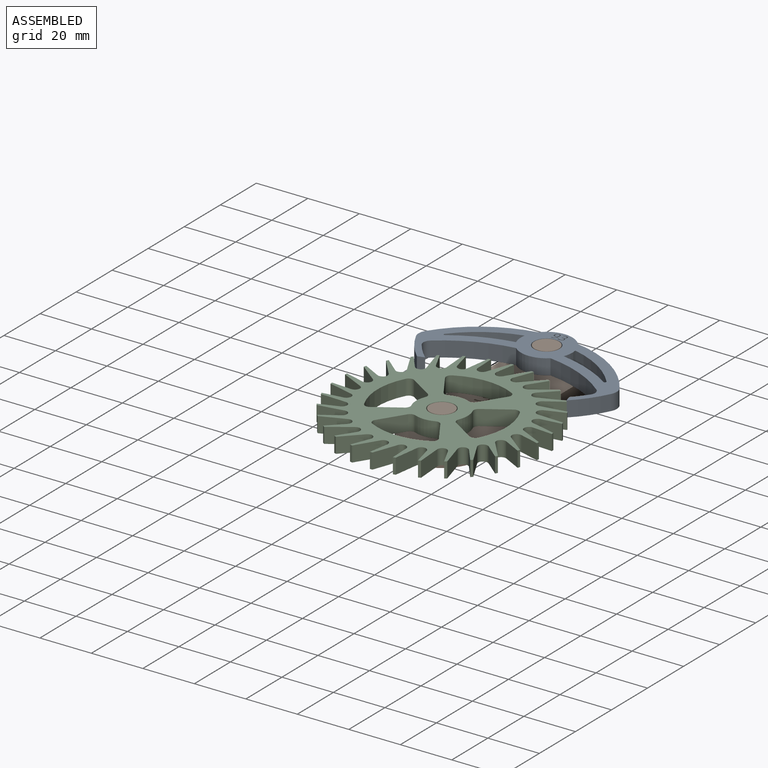
[diagram: assembled view]
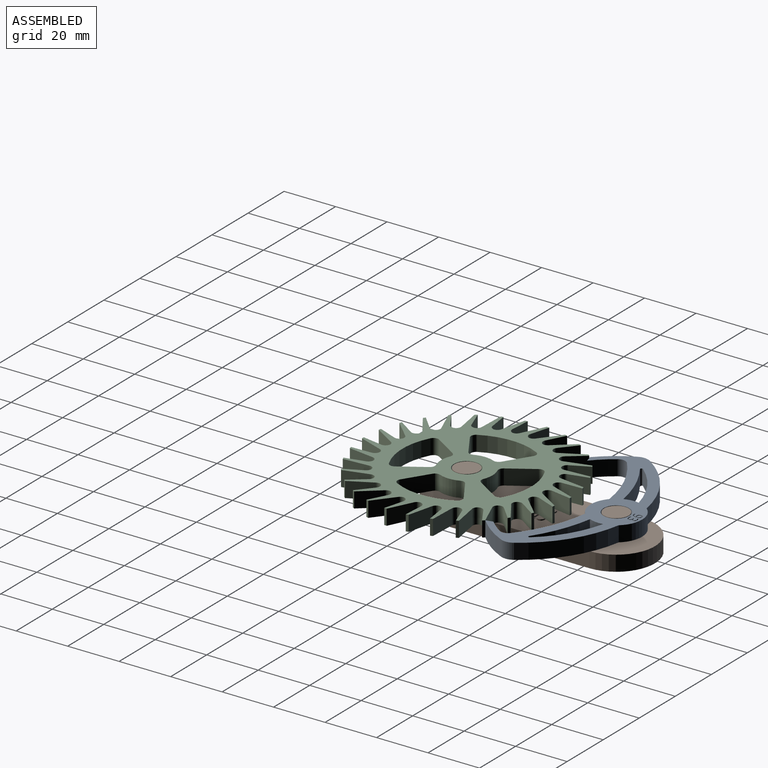
[diagram: assembled view, second angle]
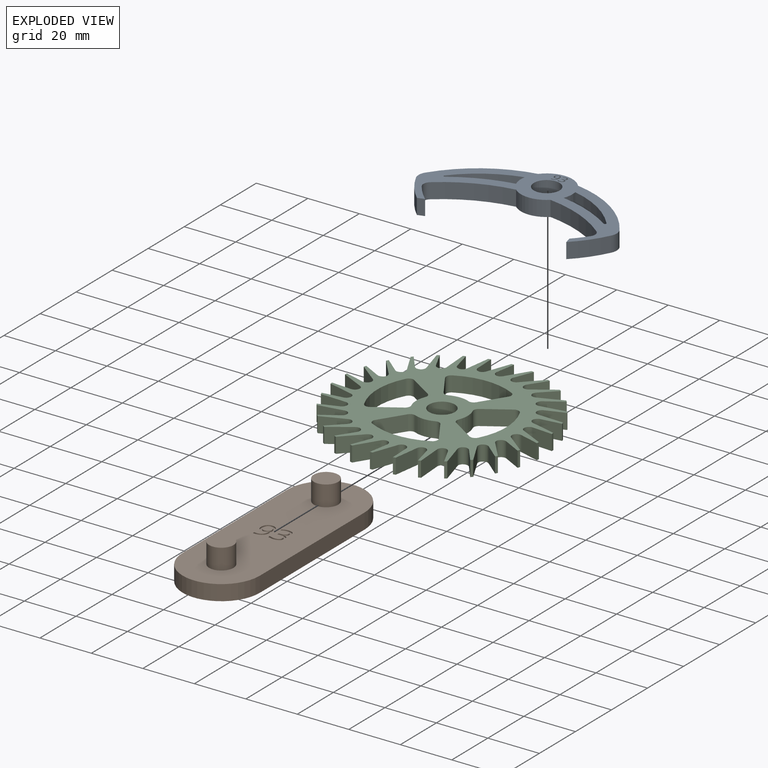
[diagram: exploded view]
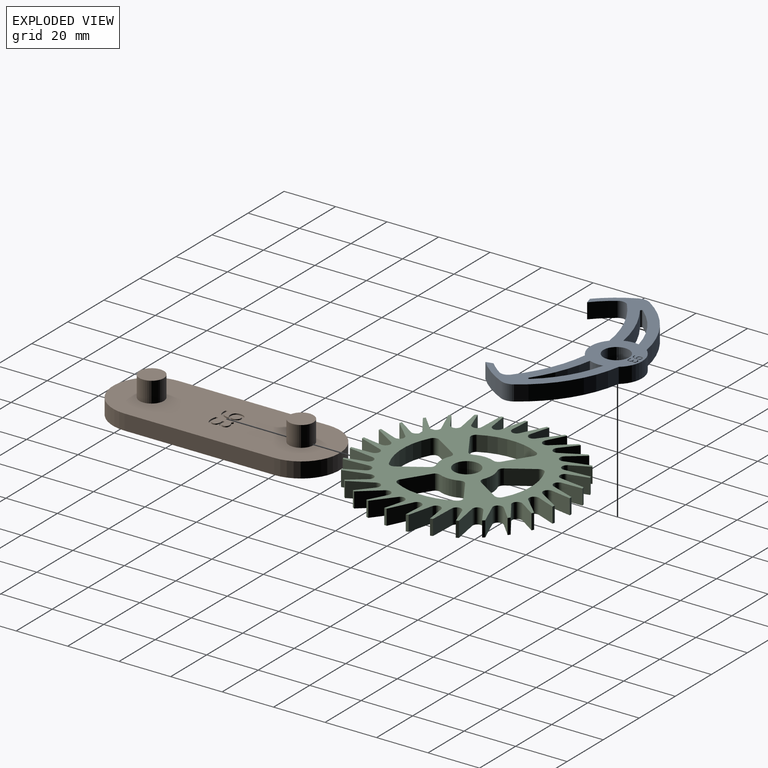
[diagram: exploded view, second angle]
ASSEMBLY  parts=3 mates=2
PART A: 84 faces, bbox 77x40.6x6 mm
  f0: plane 76.96x40.58mm, normal (0,0,1), area 835.8mm2, adj f2,f3,f4,f5,f6,f7,f8,f9
  f1: plane 76.96x40.58mm, normal (0,0,-1), area 843.3mm2, adj f2,f3,f4,f5,f6,f7,f8,f9
  f2: cylinder r=45mm len=29.92mm, axis (0,0,-1), area 221.1mm2, adj f0,f1,f3,f18
  f3: cylinder r=10mm len=15.48mm, axis (0,0,-1), area 106.3mm2, adj f0,f1,f2,f4
  f4: cylinder r=45mm len=29.92mm, axis (0,0,-1), area 221.1mm2, adj f0,f1,f3,f17
  f5: cylinder r=42.15mm len=12.3mm, axis (0,0,-1), area 91.8mm2, adj f0,f1,f6,f17
  f6: plane 6x2.66mm, normal (0.28,-0.96,0), area 16.7mm2, adj f0,f1,f5,f7
  f7: cylinder r=39.77mm len=7.32mm, axis (0,0,-1), area 58.7mm2, adj f0,f1,f6,f15
  f8: cylinder r=51.11mm len=25.55mm, axis (0,0,-1), area 169.1mm2, adj f0,f1,f9,f15
  f9: cylinder r=10mm len=13.37mm, axis (0,0,-1), area 87.8mm2, adj f0,f1,f8,f10
  f10: cylinder r=51.11mm len=25.55mm, axis (0,0,-1), area 169.1mm2, adj f0,f1,f9,f16
  f11: cylinder r=39.77mm len=6mm, axis (0,0,-1), area 42.1mm2, adj f0,f1,f12,f16
  f12: plane 6x2.7mm, normal (-0.97,-0.23,0), area 16.7mm2, adj f0,f1,f11,f14
  f13: cylinder r=5mm len=10mm, axis (0,0,-1), area 188.5mm2, adj f0,f1
  f14: cylinder r=42.15mm len=12.3mm, axis (0,0,-1), area 91.8mm2, adj f0,f1,f12,f18
  f15: cylinder r=3mm len=6mm, axis (0,0,1), area 26.8mm2, adj f0,f1,f7,f8
  f16: cylinder r=3mm len=6mm, axis (0,0,1), area 26.8mm2, adj f0,f1,f10,f11
  f17: cylinder r=5mm len=6mm, axis (0,0,-1), area 30.8mm2, adj f0,f1,f4,f5
  f18: cylinder r=5mm len=6mm, axis (0,0,-1), area 30.8mm2, adj f0,f1,f2,f14
  f19: cylinder r=55.11mm len=21.47mm, axis (0,0,1), area 139.8mm2, adj f0,f1,f20,f26
  f20: cylinder r=10mm len=6mm, axis (0,0,1), area 34.2mm2, adj f0,f1,f19,f21
  f21: cylinder r=41mm len=21.56mm, axis (0,0,1), area 154.9mm2, adj f0,f1,f20,f26
  f22: cylinder r=55.11mm len=21.47mm, axis (0,0,1), area 139.8mm2, adj f0,f1,f24,f25
  f23: cylinder r=41mm len=21.56mm, axis (0,0,1), area 154.9mm2, adj f0,f1,f24,f25
  f24: cylinder r=10mm len=6mm, axis (0,0,1), area 34.2mm2, adj f0,f1,f22,f23
  f25: cylinder r=0.5mm len=6mm, axis (0,0,1), area 8.6mm2, adj f0,f1,f22,f23
  f26: cylinder r=0.5mm len=6mm, axis (0,0,1), area 8.6mm2, adj f0,f1,f19,f21
  f27: extruded ~0.52x0.5mm, area 0.3mm2, adj f28,f52,f53,f83
  f28: extruded ~0.5x0.39mm, area 0.2mm2, adj f27,f29,f53,f83
  f29: extruded ~0.5x0.33mm, area 0.2mm2, adj f28,f30,f53,f83
  f30: extruded ~0.5x0.45mm, area 0.2mm2, adj f29,f31,f53,f83
  f31: extruded ~0.5x0.31mm, area 0.2mm2, adj f30,f32,f53,f83
  f32: extruded ~0.5x0.28mm, area 0.2mm2, adj f31,f33,f53,f83
  f33: extruded ~0.5x0.39mm, area 0.2mm2, adj f32,f34,f53,f83
  f34: extruded ~0.51x0.5mm, area 0.3mm2, adj f33,f35,f53,f83
  f35: extruded ~0.53x0.5mm, area 0.3mm2, adj f34,f52,f53,f83
  f36: extruded ~2x1.55mm, area 1.4mm2, adj f0,f37,f51,f53
  f37: extruded ~0.81x0.5mm, area 0.4mm2, adj f0,f36,f38,f53
  f38: extruded ~0.52x0.5mm, area 0.3mm2, adj f0,f37,f39,f53
  f39: extruded ~0.61x0.5mm, area 0.3mm2, adj f0,f38,f40,f53
  f40: extruded ~0.78x0.5mm, area 0.4mm2, adj f0,f39,f41,f53
  f41: extruded ~0.84x0.5mm, area 0.5mm2, adj f0,f40,f42,f53
  f42: extruded ~0.76x0.5mm, area 0.4mm2, adj f0,f41,f43,f53
  f43: extruded ~0.72x0.5mm, area 0.4mm2, adj f0,f42,f44,f53
  f44: extruded ~0.5x0.48mm, area 0.2mm2, adj f0,f43,f45,f53
  f45: extruded ~0.5x0.34mm, area 0.2mm2, adj f0,f44,f46,f53
  f46: plane 0.5x0.03mm, normal (0,1,0), area 0mm2, adj f0,f45,f47,f53
  f47: extruded ~1.06x0.5mm, area 0.6mm2, adj f0,f46,f48,f53
  f48: extruded ~0.85x0.5mm, area 0.5mm2, adj f0,f47,f49,f53
  f49: extruded ~0.5x0.42mm, area 0.2mm2, adj f0,f48,f50,f53
  f50: plane 0.5x0.33mm, normal (1,0,0), area 0.2mm2, adj f0,f49,f51,f53
  f51: extruded ~0.5x0.43mm, area 0.2mm2, adj f0,f36,f50,f53
  f52: extruded ~0.6x0.5mm, area 0.3mm2, adj f27,f35,f53,f83
  f53: plane 3.51x2.23mm, normal (0,0,1), area 3mm2, adj f27,f28,f29,f30,f31,f32,f33,f34
  f54: extruded ~0.54x0.5mm, area 0.3mm2, adj f0,f55,f81,f82
  f55: extruded ~0.62x0.5mm, area 0.4mm2, adj f0,f54,f56,f82
  f56: extruded ~0.77x0.5mm, area 0.4mm2, adj f0,f55,f57,f82
  f57: extruded ~0.58x0.5mm, area 0.3mm2, adj f0,f56,f58,f82
  f58: extruded ~0.5x0.48mm, area 0.3mm2, adj f0,f57,f59,f82
  f59: plane 0.5x0.26mm, normal (0.8,0.6,0), area 0.2mm2, adj f0,f58,f60,f82
  f60: extruded ~0.5x0.45mm, area 0.3mm2, adj f0,f59,f61,f82
  f61: extruded ~0.5x0.42mm, area 0.2mm2, adj f0,f60,f62,f82
  f62: extruded ~0.5x0.47mm, area 0.2mm2, adj f0,f61,f63,f82
  f63: extruded ~0.5x0.39mm, area 0.2mm2, adj f0,f62,f64,f82
  f64: extruded ~0.5x0.49mm, area 0.3mm2, adj f0,f63,f65,f82
  f65: extruded ~0.63x0.5mm, area 0.3mm2, adj f0,f64,f66,f82
  f66: plane 0.5x0.34mm, normal (0,-1,0), area 0.2mm2, adj f0,f65,f67,f82
  f67: plane 0.5x0.33mm, normal (1,0,0), area 0.2mm2, adj f0,f66,f68,f82
  f68: plane 0.5x0.34mm, normal (0,1,0), area 0.2mm2, adj f0,f67,f69,f82
  f69: extruded ~0.98x0.62mm, area 0.7mm2, adj f0,f68,f70,f82
  f70: extruded ~0.89x0.69mm, area 0.6mm2, adj f0,f69,f71,f82
  f71: extruded ~0.5x0.48mm, area 0.2mm2, adj f0,f70,f72,f82
  f72: extruded ~0.5x0.47mm, area 0.3mm2, adj f0,f71,f73,f82
  f73: plane 0.5x0.37mm, normal (1,0,0), area 0.2mm2, adj f0,f72,f74,f82
  f74: extruded ~0.5x0.44mm, area 0.2mm2, adj f0,f73,f75,f82
  f75: extruded ~0.5x0.5mm, area 0.2mm2, adj f0,f74,f76,f82
  f76: extruded ~0.96x0.5mm, area 0.5mm2, adj f0,f75,f77,f82
  f77: extruded ~0.75x0.5mm, area 0.4mm2, adj f0,f76,f78,f82
  f78: extruded ~0.55x0.5mm, area 0.3mm2, adj f0,f77,f79,f82
  f79: extruded ~0.61x0.5mm, area 0.3mm2, adj f0,f78,f80,f82
  f80: plane 0.5x0.02mm, normal (-1,0,0), area 0mm2, adj f0,f79,f81,f82
  f81: extruded ~0.52x0.5mm, area 0.3mm2, adj f0,f54,f80,f82
  f82: plane 3.51x2.24mm, normal (0,0,1), area 2.7mm2, adj f54,f55,f56,f57,f58,f59,f60,f61
  f83: plane 1.53x1.46mm, normal (0,0,1), area 1.8mm2, adj f27,f28,f29,f30,f31,f32,f33,f34
PART B: 67 faces, bbox 30x88.1x14 mm
  f0: plane 88.11x30mm, normal (0,0,1), area 2267.8mm2, adj f1,f2,f3,f4,f6,f8,f19,f20
  f1: cylinder r=15mm len=30mm, axis (0,0,-1), area 282.7mm2, adj f0,f2,f4,f5
  f2: plane 58.11x6mm, normal (-1,0,0), area 348.7mm2, adj f0,f1,f3,f5
  f3: cylinder r=15mm len=30mm, axis (0,0,-1), area 282.7mm2, adj f0,f2,f4,f5
  f4: plane 58.11x6mm, normal (1,0,0), area 348.7mm2, adj f0,f1,f3,f5
  f5: plane 88.11x30mm, normal (0,0,-1), area 2450.2mm2, adj f1,f2,f3,f4
  f6: cylinder r=4.75mm len=9.5mm, axis (0,0,-1), area 238.8mm2, adj f0,f7
  f7: plane 9.5x9.5mm, normal (0,0,1), area 70.9mm2, adj f6
  f8: cylinder r=4.75mm len=9.5mm, axis (0,0,-1), area 238.8mm2, adj f0,f9
  f9: plane 9.5x9.5mm, normal (0,0,1), area 70.9mm2, adj f8
  f10: extruded ~1.2x0.5mm, area 0.7mm2, adj f11,f35,f36,f66
  f11: extruded ~0.91x0.5mm, area 0.5mm2, adj f10,f12,f36,f66
  f12: extruded ~0.76x0.62mm, area 0.5mm2, adj f11,f13,f36,f66
  f13: extruded ~1.05x0.5mm, area 0.5mm2, adj f12,f14,f36,f66
  f14: extruded ~0.73x0.5mm, area 0.4mm2, adj f13,f15,f36,f66
  f15: extruded ~0.65x0.55mm, area 0.4mm2, adj f14,f16,f36,f66
  f16: extruded ~0.91x0.5mm, area 0.5mm2, adj f15,f17,f36,f66
  f17: extruded ~1.19x0.5mm, area 0.7mm2, adj f16,f18,f36,f66
  f18: extruded ~1.23x0.5mm, area 0.7mm2, adj f17,f35,f36,f66
  f19: extruded ~4.66x3.6mm, area 3.4mm2, adj f0,f20,f34,f36
  f20: extruded ~1.87x0.5mm, area 1mm2, adj f0,f19,f21,f36
  f21: extruded ~1.21x0.93mm, area 0.8mm2, adj f0,f20,f22,f36
  f22: extruded ~1.41x0.5mm, area 0.7mm2, adj f0,f21,f23,f36
  f23: extruded ~1.82x0.72mm, area 1mm2, adj f0,f22,f24,f36
  f24: extruded ~1.95x0.69mm, area 1.1mm2, adj f0,f23,f25,f36
  f25: extruded ~1.76x0.62mm, area 1mm2, adj f0,f24,f26,f36
  f26: extruded ~1.67x0.63mm, area 0.9mm2, adj f0,f25,f27,f36
  f27: extruded ~1.11x0.5mm, area 0.6mm2, adj f0,f26,f28,f36
  f28: extruded ~0.79x0.69mm, area 0.5mm2, adj f0,f27,f29,f36
  f29: plane 0.5x0.06mm, normal (0,1,0), area 0mm2, adj f0,f28,f30,f36
  f30: extruded ~2.47x0.72mm, area 1.3mm2, adj f0,f29,f31,f36
  f31: extruded ~1.97x0.81mm, area 1.1mm2, adj f0,f30,f32,f36
  f32: extruded ~0.99x0.5mm, area 0.5mm2, adj f0,f31,f33,f36
  f33: plane 0.78x0.5mm, normal (1,0,0), area 0.4mm2, adj f0,f32,f34,f36
  f34: extruded ~1x0.5mm, area 0.5mm2, adj f0,f19,f33,f36
  f35: extruded ~1.39x0.5mm, area 0.7mm2, adj f10,f18,f36,f66
  f36: plane 8.15x5.18mm, normal (0,0,1), area 16.3mm2, adj f10,f11,f12,f13,f14,f15,f16,f17
  f37: extruded ~1.24x0.5mm, area 0.7mm2, adj f0,f38,f64,f65
  f38: extruded ~1.45x0.64mm, area 0.8mm2, adj f0,f37,f39,f65
  f39: extruded ~1.8x0.53mm, area 1mm2, adj f0,f38,f40,f65
  f40: extruded ~1.34x0.5mm, area 0.7mm2, adj f0,f39,f41,f65
  f41: extruded ~1.13x0.61mm, area 0.6mm2, adj f0,f40,f42,f65
  f42: plane 0.61x0.5mm, normal (0.8,0.6,0), area 0.4mm2, adj f0,f41,f43,f65
  f43: extruded ~1.05x0.52mm, area 0.6mm2, adj f0,f42,f44,f65
  f44: extruded ~0.98x0.5mm, area 0.5mm2, adj f0,f43,f45,f65
  f45: extruded ~1.08x0.5mm, area 0.6mm2, adj f0,f44,f46,f65
  f46: extruded ~0.91x0.5mm, area 0.5mm2, adj f0,f45,f47,f65
  f47: extruded ~1.14x0.54mm, area 0.7mm2, adj f0,f46,f48,f65
  f48: extruded ~1.47x0.5mm, area 0.8mm2, adj f0,f47,f49,f65
  f49: plane 0.79x0.5mm, normal (0,-1,0), area 0.4mm2, adj f0,f48,f50,f65
  f50: plane 0.77x0.5mm, normal (1,0,0), area 0.4mm2, adj f0,f49,f51,f65
  f51: plane 0.78x0.5mm, normal (0,1,0), area 0.4mm2, adj f0,f50,f52,f65
  f52: extruded ~2.27x1.44mm, area 1.5mm2, adj f0,f51,f53,f65
  f53: extruded ~2.06x1.61mm, area 1.5mm2, adj f0,f52,f54,f65
  f54: extruded ~1.1x0.5mm, area 0.6mm2, adj f0,f53,f55,f65
  f55: extruded ~1.1x0.5mm, area 0.6mm2, adj f0,f54,f56,f65
  f56: plane 0.86x0.5mm, normal (1,0,0), area 0.4mm2, adj f0,f55,f57,f65
  f57: extruded ~1.02x0.5mm, area 0.5mm2, adj f0,f56,f58,f65
  f58: extruded ~1.15x0.5mm, area 0.6mm2, adj f0,f57,f59,f65
  f59: extruded ~2.23x0.61mm, area 1.2mm2, adj f0,f58,f60,f65
  f60: extruded ~1.74x0.79mm, area 1mm2, adj f0,f59,f61,f65
  f61: extruded ~1.28x0.5mm, area 0.7mm2, adj f0,f60,f62,f65
  f62: extruded ~1.42x0.61mm, area 0.8mm2, adj f0,f61,f63,f65
  f63: plane 0.5x0.04mm, normal (-1,0,0), area 0mm2, adj f0,f62,f64,f65
  f64: extruded ~1.21x0.65mm, area 0.7mm2, adj f0,f37,f63,f65
  f65: plane 8.15x5.19mm, normal (0,0,1), area 14.6mm2, adj f37,f38,f39,f40,f41,f42,f43,f44
  f66: plane 3.56x3.38mm, normal (0,0,1), area 9.7mm2, adj f10,f11,f12,f13,f14,f15,f16,f17
PART C: 185 faces, bbox 79.7x80x6 mm
  f0: cylinder r=2mm len=6mm, axis (0,0,-1), area 11.7mm2, adj f2,f6,f7,f8
  f1: cylinder r=2mm len=6mm, axis (0,0,-1), area 20.1mm2, adj f3,f6,f7,f9
  f2: plane 9.29x6mm, normal (-0.94,0.34,0), area 59.3mm2, adj f0,f5,f6,f7
  f3: plane 7.66x6mm, normal (0.98,-0.17,0), area 46.7mm2, adj f1,f5,f6,f7
  f4: cylinder r=5mm len=10mm, axis (0,0,-1), area 188.5mm2, adj f6,f7
  f5: cylinder r=40mm len=6mm, axis (0,0,-1), area 6mm2, adj f2,f3,f6,f7
  f6: plane 80x79.75mm, normal (0,0,1), area 2212.3mm2, adj f0,f1,f2,f3,f4,f5,f8,f9
  f7: plane 80x79.75mm, normal (0,0,-1), area 2212.3mm2, adj f0,f1,f2,f3,f4,f5,f8,f9
  f8: cylinder r=2mm len=6mm, axis (0,0,-1), area 20.1mm2, adj f0,f6,f7,f12
  f9: cylinder r=2mm len=6mm, axis (0,0,-1), area 11.7mm2, adj f1,f6,f7,f150
  f10: cylinder r=2mm len=6mm, axis (0,0,-1), area 11.7mm2, adj f6,f7,f11,f14
  f11: plane 9.79x6mm, normal (-0.99,0.14,0), area 59.3mm2, adj f6,f7,f10,f13
  f12: plane 7.77x6mm, normal (1,0.03,0), area 46.7mm2, adj f6,f7,f8,f13
  f13: cylinder r=40mm len=6mm, axis (0,0,-1), area 6mm2, adj f6,f7,f11,f12
  f14: cylinder r=2mm len=6mm, axis (0,0,-1), area 20.1mm2, adj f6,f7,f10,f17
  f15: cylinder r=2mm len=6mm, axis (0,0,-1), area 11.7mm2, adj f6,f7,f16,f19
  f16: plane 9.86x6mm, normal (-1,-0.07,0), area 59.3mm2, adj f6,f7,f15,f18
  f17: plane 7.55x6mm, normal (0.97,0.24,0), area 46.7mm2, adj f6,f7,f14,f18
  f18: cylinder r=40mm len=6mm, axis (0,0,-1), area 6mm2, adj f6,f7,f16,f17
  f19: cylinder r=2mm len=6mm, axis (0,0,-1), area 20.1mm2, adj f6,f7,f15,f22
  f20: cylinder r=2mm len=6mm, axis (0,0,-1), area 11.7mm2, adj f6,f7,f21,f24
  f21: plane 9.5x6mm, normal (-0.96,-0.28,0), area 59.3mm2, adj f6,f7,f20,f23
  f22: plane 6.99x6mm, normal (0.9,0.44,0), area 46.7mm2, adj f6,f7,f19,f23
  f23: cylinder r=40mm len=6mm, axis (0,0,-1), area 6mm2, adj f6,f7,f21,f22
  f24: cylinder r=2mm len=6mm, axis (0,0,-1), area 20.1mm2, adj f6,f7,f20,f27
  f25: cylinder r=2mm len=6mm, axis (0,0,-1), area 11.7mm2, adj f6,f7,f26,f29
  f26: plane 8.73x6mm, normal (-0.88,-0.47,0), area 59.3mm2, adj f6,f7,f25,f28
  f27: plane 6.13x6mm, normal (0.79,0.62,0), area 46.7mm2, adj f6,f7,f24,f28
  f28: cylinder r=40mm len=6mm, axis (0,0,-1), area 6mm2, adj f6,f7,f26,f27
  f29: cylinder r=2mm len=6mm, axis (0,0,-1), area 20.1mm2, adj f6,f7,f25,f32
  f30: cylinder r=2mm len=6mm, axis (0,0,-1), area 11.7mm2, adj f6,f7,f31,f34
  f31: plane 7.57x6.35mm, normal (-0.77,-0.64,0), area 59.3mm2, adj f6,f7,f30,f33
  f32: plane 6x5.96mm, normal (0.64,0.77,0), area 46.7mm2, adj f6,f7,f29,f33
  f33: cylinder r=40mm len=6mm, axis (0,0,-1), area 6mm2, adj f6,f7,f31,f32
  f34: cylinder r=2mm len=6mm, axis (0,0,-1), area 20.1mm2, adj f6,f7,f30,f37
  f35: cylinder r=2mm len=6mm, axis (0,0,-1), area 11.7mm2, adj f6,f7,f36,f39
  f36: plane 7.79x6.09mm, normal (-0.62,-0.79,0), area 59.3mm2, adj f6,f7,f35,f38
  f37: plane 6.87x6mm, normal (0.47,0.88,0), area 46.7mm2, adj f6,f7,f34,f38
  f38: cylinder r=40mm len=6mm, axis (0,0,-1), area 6mm2, adj f6,f7,f36,f37
  f39: cylinder r=2mm len=6mm, axis (0,0,-1), area 20.1mm2, adj f6,f7,f35,f42
  f40: cylinder r=2mm len=6mm, axis (0,0,-1), area 11.7mm2, adj f6,f7,f41,f44
  f41: plane 8.89x6mm, normal (-0.44,-0.9,0), area 59.3mm2, adj f6,f7,f40,f43
  f42: plane 7.48x6mm, normal (0.28,0.96,0), area 46.7mm2, adj f6,f7,f39,f43
  f43: cylinder r=40mm len=6mm, axis (0,0,-1), area 6mm2, adj f6,f7,f41,f42
  f44: cylinder r=2mm len=6mm, axis (0,0,-1), area 20.1mm2, adj f6,f7,f40,f47
  f45: cylinder r=2mm len=6mm, axis (0,0,-1), area 11.7mm2, adj f6,f7,f46,f49
  f46: plane 9.59x6mm, normal (-0.24,-0.97,0), area 59.3mm2, adj f6,f7,f45,f48
  f47: plane 7.76x6mm, normal (0.07,1,0), area 46.7mm2, adj f6,f7,f44,f48
  f48: cylinder r=40mm len=6mm, axis (0,0,-1), area 6mm2, adj f6,f7,f46,f47
  f49: cylinder r=2mm len=6mm, axis (0,0,-1), area 20.1mm2, adj f6,f7,f45,f52
  f50: cylinder r=2mm len=6mm, axis (0,0,-1), area 11.7mm2, adj f6,f7,f51,f54
  f51: plane 9.88x6mm, normal (-0.03,-1,0), area 59.3mm2, adj f6,f7,f50,f53
  f52: plane 7.7x6mm, normal (-0.14,0.99,0), area 46.7mm2, adj f6,f7,f49,f53
  f53: cylinder r=40mm len=6mm, axis (0,0,-1), area 6mm2, adj f6,f7,f51,f52
  f54: cylinder r=2mm len=6mm, axis (0,0,-1), area 20.1mm2, adj f6,f7,f50,f57
  f55: cylinder r=2mm len=6mm, axis (0,0,-1), area 11.7mm2, adj f6,f7,f56,f59
  f56: plane 9.74x6mm, normal (0.17,-0.98,0), area 59.3mm2, adj f6,f7,f55,f58
  f57: plane 7.31x6mm, normal (-0.34,0.94,0), area 46.7mm2, adj f6,f7,f54,f58
  f58: cylinder r=40mm len=6mm, axis (0,0,-1), area 6mm2, adj f6,f7,f56,f57
  f59: cylinder r=2mm len=6mm, axis (0,0,-1), area 20.1mm2, adj f6,f7,f55,f62
  f60: cylinder r=2mm len=6mm, axis (0,0,-1), area 11.7mm2, adj f6,f7,f61,f64
  f61: plane 9.17x6mm, normal (0.37,-0.93,0), area 59.3mm2, adj f6,f7,f60,f63
  f62: plane 6.6x6mm, normal (-0.53,0.85,0), area 46.7mm2, adj f6,f7,f59,f63
  f63: cylinder r=40mm len=6mm, axis (0,0,-1), area 6mm2, adj f6,f7,f61,f62
  f64: cylinder r=2mm len=6mm, axis (0,0,-1), area 20.1mm2, adj f6,f7,f60,f67
  f65: cylinder r=2mm len=6mm, axis (0,0,-1), area 11.7mm2, adj f6,f7,f66,f69
  f66: plane 8.2x6mm, normal (0.56,-0.83,0), area 59.3mm2, adj f6,f7,f65,f68
  f67: plane 6x5.59mm, normal (-0.69,0.72,0), area 46.7mm2, adj f6,f7,f64,f68
  f68: cylinder r=40mm len=6mm, axis (0,0,-1), area 6mm2, adj f6,f7,f66,f67
  f69: cylinder r=2mm len=6mm, axis (0,0,-1), area 20.1mm2, adj f6,f7,f65,f72
  f70: cylinder r=2mm len=6mm, axis (0,0,-1), area 11.7mm2, adj f6,f7,f71,f74
  f71: plane 7.11x6.87mm, normal (0.72,-0.69,0), area 59.3mm2, adj f6,f7,f70,f73
  f72: plane 6.45x6mm, normal (-0.83,0.56,0), area 46.7mm2, adj f6,f7,f69,f73
  f73: cylinder r=40mm len=6mm, axis (0,0,-1), area 6mm2, adj f6,f7,f71,f72
  f74: cylinder r=2mm len=6mm, axis (0,0,-1), area 20.1mm2, adj f6,f7,f70,f77
  f75: cylinder r=2mm len=6mm, axis (0,0,-1), area 11.7mm2, adj f6,f7,f76,f79
  f76: plane 8.38x6mm, normal (0.85,-0.53,0), area 59.3mm2, adj f6,f7,f75,f78
  f77: plane 7.21x6mm, normal (-0.93,0.37,0), area 46.7mm2, adj f6,f7,f74,f78
  f78: cylinder r=40mm len=6mm, axis (0,0,-1), area 6mm2, adj f6,f7,f76,f77
  f79: cylinder r=2mm len=6mm, axis (0,0,-1), area 20.1mm2, adj f6,f7,f75,f82
  f80: cylinder r=2mm len=6mm, axis (0,0,-1), area 11.7mm2, adj f6,f7,f81,f84
  f81: plane 9.29x6mm, normal (0.94,-0.34,0), area 59.3mm2, adj f6,f7,f80,f83
  f82: plane 7.66x6mm, normal (-0.98,0.17,0), area 46.7mm2, adj f6,f7,f79,f83
  f83: cylinder r=40mm len=6mm, axis (0,0,-1), area 6mm2, adj f6,f7,f81,f82
  f84: cylinder r=2mm len=6mm, axis (0,0,-1), area 20.1mm2, adj f6,f7,f80,f87
  f85: cylinder r=2mm len=6mm, axis (0,0,-1), area 11.7mm2, adj f6,f7,f86,f89
  f86: plane 9.79x6mm, normal (0.99,-0.14,0), area 59.3mm2, adj f6,f7,f85,f88
  f87: plane 7.77x6mm, normal (-1,-0.03,0), area 46.7mm2, adj f6,f7,f84,f88
  f88: cylinder r=40mm len=6mm, axis (0,0,-1), area 6mm2, adj f6,f7,f86,f87
  f89: cylinder r=2mm len=6mm, axis (0,0,-1), area 20.1mm2, adj f6,f7,f85,f92
  f90: cylinder r=2mm len=6mm, axis (0,0,-1), area 11.7mm2, adj f6,f7,f91,f94
  f91: plane 9.86x6mm, normal (1,0.07,0), area 59.3mm2, adj f6,f7,f90,f93
  f92: plane 7.55x6mm, normal (-0.97,-0.24,0), area 46.7mm2, adj f6,f7,f89,f93
  f93: cylinder r=40mm len=6mm, axis (0,0,-1), area 6mm2, adj f6,f7,f91,f92
  f94: cylinder r=2mm len=6mm, axis (0,0,-1), area 20.1mm2, adj f6,f7,f90,f97
  f95: cylinder r=2mm len=6mm, axis (0,0,-1), area 11.7mm2, adj f6,f7,f96,f99
  f96: plane 9.5x6mm, normal (0.96,0.28,0), area 59.3mm2, adj f6,f7,f95,f98
  f97: plane 6.99x6mm, normal (-0.9,-0.44,0), area 46.7mm2, adj f6,f7,f94,f98
  f98: cylinder r=40mm len=6mm, axis (0,0,-1), area 6mm2, adj f6,f7,f96,f97
  f99: cylinder r=2mm len=6mm, axis (0,0,-1), area 20.1mm2, adj f6,f7,f95,f102
  f100: cylinder r=2mm len=6mm, axis (0,0,-1), area 11.7mm2, adj f6,f7,f101,f104
  f101: plane 8.73x6mm, normal (0.88,0.47,0), area 59.3mm2, adj f6,f7,f100,f103
  f102: plane 6.13x6mm, normal (-0.79,-0.62,0), area 46.7mm2, adj f6,f7,f99,f103
  f103: cylinder r=40mm len=6mm, axis (0,0,-1), area 6mm2, adj f6,f7,f101,f102
  f104: cylinder r=2mm len=6mm, axis (0,0,-1), area 20.1mm2, adj f6,f7,f100,f107
  f105: cylinder r=2mm len=6mm, axis (0,0,-1), area 11.7mm2, adj f6,f7,f106,f109
  f106: plane 7.57x6.35mm, normal (0.77,0.64,0), area 59.3mm2, adj f6,f7,f105,f108
  f107: plane 6x5.96mm, normal (-0.64,-0.77,0), area 46.7mm2, adj f6,f7,f104,f108
  f108: cylinder r=40mm len=6mm, axis (0,0,-1), area 6mm2, adj f6,f7,f106,f107
  f109: cylinder r=2mm len=6mm, axis (0,0,-1), area 20.1mm2, adj f6,f7,f105,f112
  f110: cylinder r=2mm len=6mm, axis (0,0,-1), area 11.7mm2, adj f6,f7,f111,f114
  f111: plane 7.79x6.09mm, normal (0.62,0.79,0), area 59.3mm2, adj f6,f7,f110,f113
  f112: plane 6.87x6mm, normal (-0.47,-0.88,0), area 46.7mm2, adj f6,f7,f109,f113
  f113: cylinder r=40mm len=6mm, axis (0,0,-1), area 6mm2, adj f6,f7,f111,f112
  f114: cylinder r=2mm len=6mm, axis (0,0,-1), area 20.1mm2, adj f6,f7,f110,f117
  f115: cylinder r=2mm len=6mm, axis (0,0,-1), area 11.7mm2, adj f6,f7,f116,f119
  f116: plane 8.89x6mm, normal (0.44,0.9,0), area 59.3mm2, adj f6,f7,f115,f118
  f117: plane 7.48x6mm, normal (-0.28,-0.96,0), area 46.7mm2, adj f6,f7,f114,f118
  f118: cylinder r=40mm len=6mm, axis (0,0,-1), area 6mm2, adj f6,f7,f116,f117
  f119: cylinder r=2mm len=6mm, axis (0,0,-1), area 20.1mm2, adj f6,f7,f115,f122
  f120: cylinder r=2mm len=6mm, axis (0,0,-1), area 11.7mm2, adj f6,f7,f121,f124
  f121: plane 9.59x6mm, normal (0.24,0.97,0), area 59.3mm2, adj f6,f7,f120,f123
  f122: plane 7.76x6mm, normal (-0.07,-1,0), area 46.7mm2, adj f6,f7,f119,f123
  f123: cylinder r=40mm len=6mm, axis (0,0,-1), area 6mm2, adj f6,f7,f121,f122
  f124: cylinder r=2mm len=6mm, axis (0,0,-1), area 20.1mm2, adj f6,f7,f120,f127
  f125: cylinder r=2mm len=6mm, axis (0,0,-1), area 11.7mm2, adj f6,f7,f126,f129
  f126: plane 9.88x6mm, normal (0.03,1,0), area 59.3mm2, adj f6,f7,f125,f128
  f127: plane 7.7x6mm, normal (0.14,-0.99,0), area 46.7mm2, adj f6,f7,f124,f128
  f128: cylinder r=40mm len=6mm, axis (0,0,-1), area 6mm2, adj f6,f7,f126,f127
  f129: cylinder r=2mm len=6mm, axis (0,0,-1), area 20.1mm2, adj f6,f7,f125,f132
  f130: cylinder r=2mm len=6mm, axis (0,0,-1), area 11.7mm2, adj f6,f7,f131,f134
  f131: plane 9.74x6mm, normal (-0.17,0.98,0), area 59.3mm2, adj f6,f7,f130,f133
  f132: plane 7.31x6mm, normal (0.34,-0.94,0), area 46.7mm2, adj f6,f7,f129,f133
  f133: cylinder r=40mm len=6mm, axis (0,0,-1), area 6mm2, adj f6,f7,f131,f132
  f134: cylinder r=2mm len=6mm, axis (0,0,-1), area 20.1mm2, adj f6,f7,f130,f137
  f135: cylinder r=2mm len=6mm, axis (0,0,-1), area 11.7mm2, adj f6,f7,f136,f139
  f136: plane 9.17x6mm, normal (-0.37,0.93,0), area 59.3mm2, adj f6,f7,f135,f138
  f137: plane 6.6x6mm, normal (0.53,-0.85,0), area 46.7mm2, adj f6,f7,f134,f138
  f138: cylinder r=40mm len=6mm, axis (0,0,-1), area 6mm2, adj f6,f7,f136,f137
  f139: cylinder r=2mm len=6mm, axis (0,0,-1), area 20.1mm2, adj f6,f7,f135,f142
  f140: cylinder r=2mm len=6mm, axis (0,0,-1), area 11.7mm2, adj f6,f7,f141,f144
  f141: plane 8.2x6mm, normal (-0.56,0.83,0), area 59.3mm2, adj f6,f7,f140,f143
  f142: plane 6x5.59mm, normal (0.69,-0.72,0), area 46.7mm2, adj f6,f7,f139,f143
  f143: cylinder r=40mm len=6mm, axis (0,0,-1), area 6mm2, adj f6,f7,f141,f142
  f144: cylinder r=2mm len=6mm, axis (0,0,-1), area 20.1mm2, adj f6,f7,f140,f147
  f145: cylinder r=2mm len=6mm, axis (0,0,-1), area 11.7mm2, adj f6,f7,f146,f149
  f146: plane 7.11x6.87mm, normal (-0.72,0.69,0), area 59.3mm2, adj f6,f7,f145,f148
  f147: plane 6.45x6mm, normal (0.83,-0.56,0), area 46.7mm2, adj f6,f7,f144,f148
  f148: cylinder r=40mm len=6mm, axis (0,0,-1), area 6mm2, adj f6,f7,f146,f147
  f149: cylinder r=2mm len=6mm, axis (0,0,-1), area 20.1mm2, adj f6,f7,f145,f151
  f150: plane 8.38x6mm, normal (-0.85,0.53,0), area 59.3mm2, adj f6,f7,f9,f152
  f151: plane 7.21x6mm, normal (0.93,-0.37,0), area 46.7mm2, adj f6,f7,f149,f152
  f152: cylinder r=40mm len=6mm, axis (0,0,-1), area 6mm2, adj f6,f7,f150,f151
  f153: cylinder r=10mm len=7.78mm, axis (0,0,1), area 48mm2, adj f6,f7,f157,f159
  f154: plane 9.35x6mm, normal (-0.84,0.54,0), area 66.5mm2, adj f6,f7,f157,f158
  f155: cylinder r=25mm len=23.1mm, axis (0,0,1), area 144mm2, adj f6,f7,f158,f160
  f156: plane 9.35x6mm, normal (0.84,0.54,0), area 66.5mm2, adj f6,f7,f159,f160
  f157: cylinder r=2mm len=6mm, axis (0,0,1), area 16.8mm2, adj f6,f7,f153,f154
  f158: cylinder r=2mm len=6mm, axis (0,0,1), area 19.9mm2, adj f6,f7,f154,f155
  f159: cylinder r=2mm len=6mm, axis (0,0,1), area 16.8mm2, adj f6,f7,f153,f156
  f160: cylinder r=2mm len=6mm, axis (0,0,1), area 19.9mm2, adj f6,f7,f155,f156
  f161: cylinder r=10mm len=7.78mm, axis (0,0,1), area 48mm2, adj f6,f7,f165,f167
  f162: plane 9.35x6mm, normal (0.54,0.84,0), area 66.5mm2, adj f6,f7,f165,f166
  f163: cylinder r=25mm len=23.1mm, axis (0,0,1), area 144mm2, adj f6,f7,f166,f168
  f164: plane 9.35x6mm, normal (0.54,-0.84,0), area 66.5mm2, adj f6,f7,f167,f168
  f165: cylinder r=2mm len=6mm, axis (0,0,1), area 16.8mm2, adj f6,f7,f161,f162
  f166: cylinder r=2mm len=6mm, axis (0,0,1), area 19.9mm2, adj f6,f7,f162,f163
  f167: cylinder r=2mm len=6mm, axis (0,0,1), area 16.8mm2, adj f6,f7,f161,f164
  f168: cylinder r=2mm len=6mm, axis (0,0,1), area 19.9mm2, adj f6,f7,f163,f164
  f169: cylinder r=10mm len=7.78mm, axis (0,0,1), area 48mm2, adj f6,f7,f173,f175
  f170: plane 9.35x6mm, normal (-0.54,-0.84,0), area 66.5mm2, adj f6,f7,f173,f174
  f171: cylinder r=25mm len=23.1mm, axis (0,0,1), area 144mm2, adj f6,f7,f174,f176
  f172: plane 9.35x6mm, normal (-0.54,0.84,0), area 66.5mm2, adj f6,f7,f175,f176
  f173: cylinder r=2mm len=6mm, axis (0,0,1), area 16.8mm2, adj f6,f7,f169,f170
  f174: cylinder r=2mm len=6mm, axis (0,0,1), area 19.9mm2, adj f6,f7,f170,f171
  f175: cylinder r=2mm len=6mm, axis (0,0,1), area 16.8mm2, adj f6,f7,f169,f172
  f176: cylinder r=2mm len=6mm, axis (0,0,1), area 19.9mm2, adj f6,f7,f171,f172
  f177: cylinder r=10mm len=7.78mm, axis (0,0,1), area 48mm2, adj f6,f7,f181,f183
  f178: plane 9.35x6mm, normal (0.84,-0.54,0), area 66.5mm2, adj f6,f7,f181,f182
  f179: cylinder r=25mm len=23.1mm, axis (0,0,1), area 144mm2, adj f6,f7,f182,f184
  f180: plane 9.35x6mm, normal (-0.84,-0.54,0), area 66.5mm2, adj f6,f7,f183,f184
  f181: cylinder r=2mm len=6mm, axis (0,0,1), area 16.8mm2, adj f6,f7,f177,f178
  f182: cylinder r=2mm len=6mm, axis (0,0,1), area 19.9mm2, adj f6,f7,f178,f179
  f183: cylinder r=2mm len=6mm, axis (0,0,1), area 16.8mm2, adj f6,f7,f177,f180
  f184: cylinder r=2mm len=6mm, axis (0,0,1), area 19.9mm2, adj f6,f7,f179,f180
PLACE A t=(-14.61,-33.22,7.4)mm
PLACE B t=(-14.61,-4.17,-0.6)mm fixed
PLACE C t=(-14.61,-33.22,7.4)mm
MATE fastened A.f3 <-> B.f1  axis (0,0,1) through (-14.61,24.89,13.4)mm
MATE fastened C.f152 <-> B.f3  axis (0,0,1) through (-14.61,-33.22,13.4)mm
